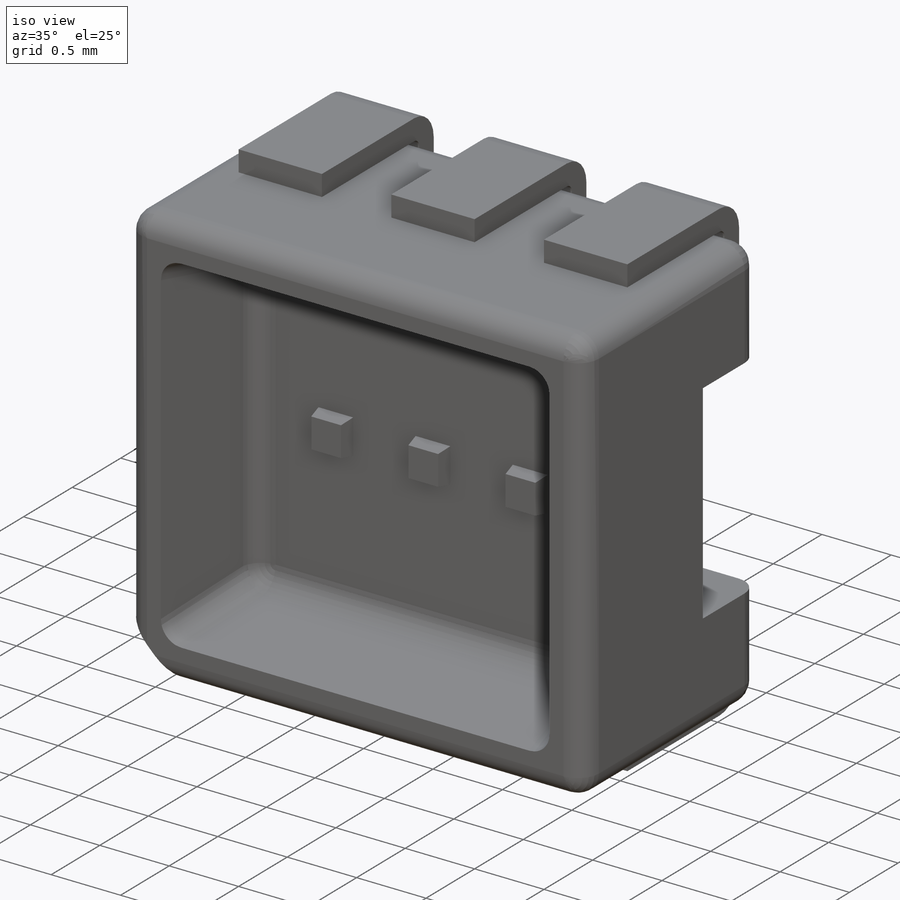
[diagram: iso view]
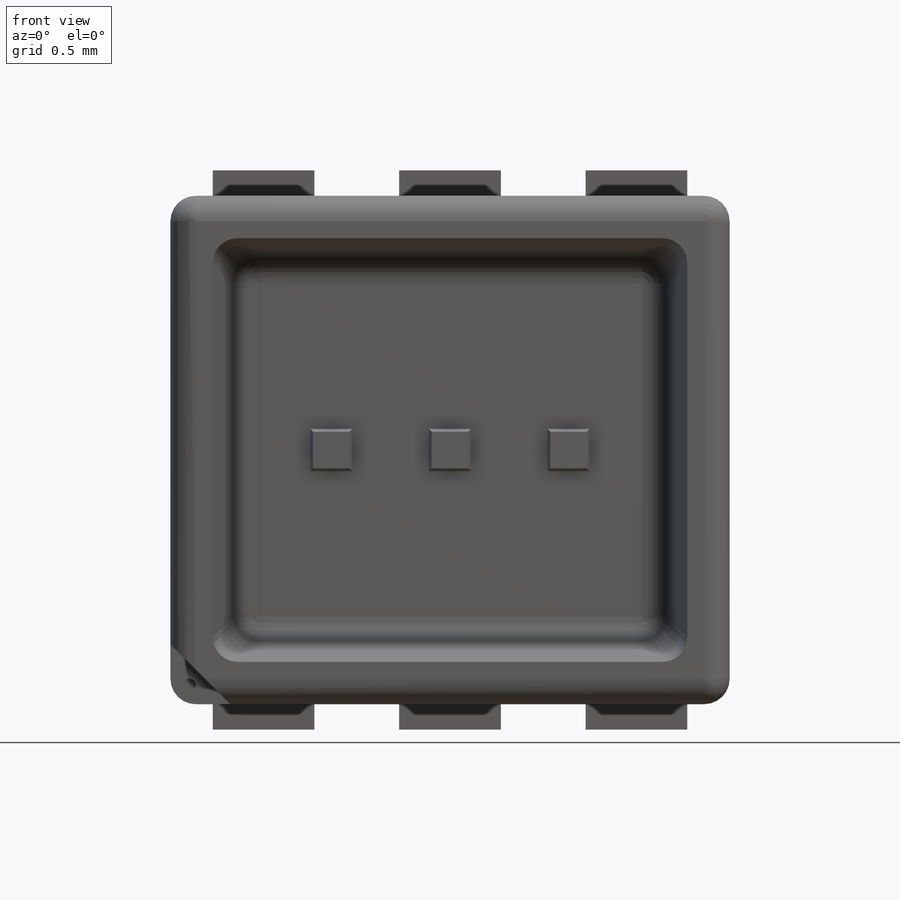
[diagram: front view]
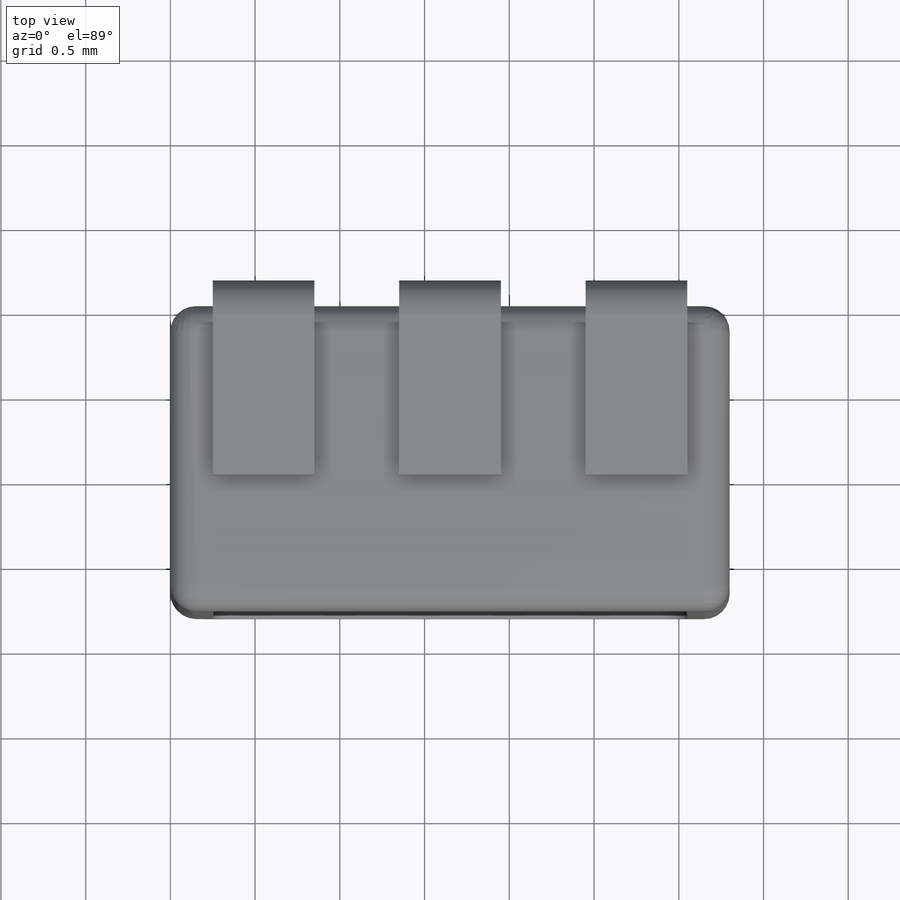
[diagram: top view]
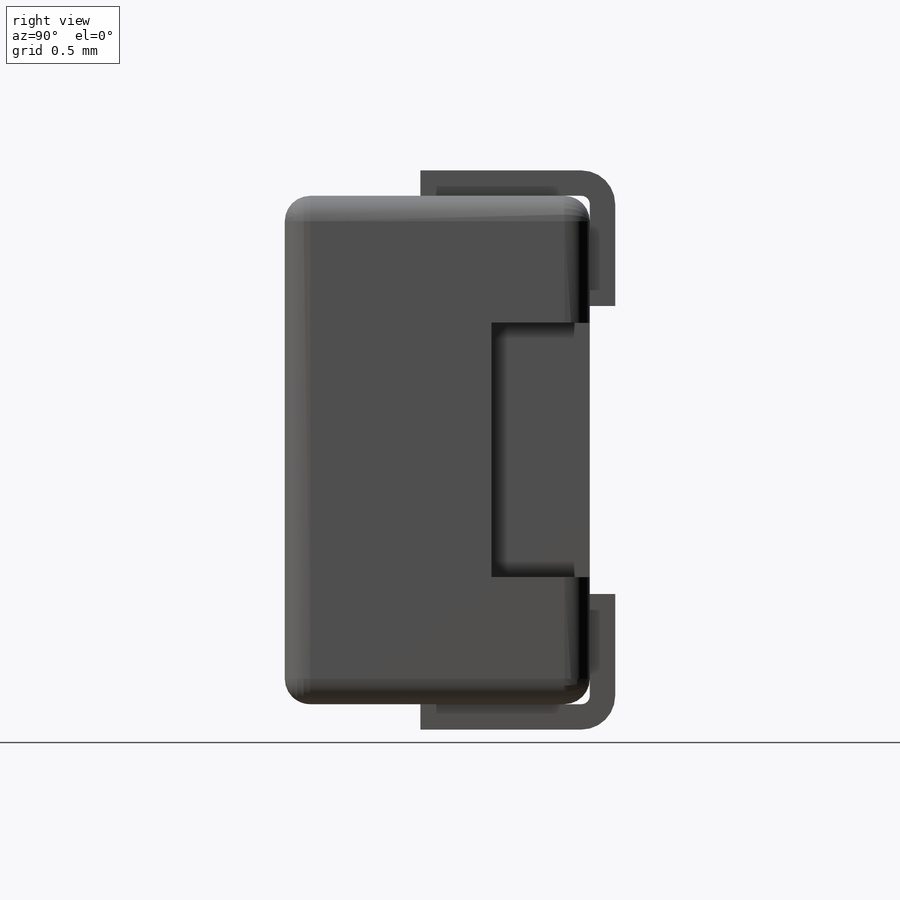
[diagram: right view]
SOLIDWORKS PART (.sldprt)
format: sldprt  version: not decoded by parser v0  size: 445,440 bytes
history: native  units: mm
features: sketch x7, cut_extrude x4, plane x3, extrude x2, pattern_linear x2, mirror x2, material x1, fillet x1 (+13 scaffold rows collapsed)
feature tree (35):
  scaffold x13  (default folders/planes/origin — collapsed)
  material  "Material <not specified>"
  sketch  "Sketch1"  dims[D1=3.0mm D2=3.3mm]
  extrude  "Boss-Extrude1"  Depth=1.8mm
  sketch  "Sketch4"  dims[c1.D1=~0.560265mm c2.D1=45.0deg c2.D2=0.5mm]
  cut_extrude  "Cut-Extrude2"  Depth=0.4mm
  sketch  "Sketch2"  dims[D1=2.8mm D2=2.5mm]
  cut_extrude  "Cut-Extrude1"  Depth=0.8mm
  fillet  "Fillet1"  Radius=0.15mm
  plane  "Plane1"  Offset=0.55mm
  sketch  "Sketch3"  dims[c1.D1=1.0mm c1.D2=0.65mm c2.D1=1.0mm c2.D3=0.8mm c3.D1=0.6mm c3.D5=0.15mm c3.D6=10.0mm c3.D7=0.05mm]
  pattern_linear  "LPattern1"  Count1=3 Count2=1 Spacing1=1.1mm Spacing2=10mm
  plane  "Plane2"  Offset=1.5mm
  mirror  "Mirror1"
  sketch  "Sketch5"  dims[D3=0.08mm D1=0.11mm D2=0.11mm]
  cut_extrude  "Cut-Extrude3"  Depth=0.1mm
  sketch  "Sketch6"  dims[D1=0.25mm D2=0.25mm D3=0.7mm]
  extrude  "Boss-Extrude2"  Depth=0.1mm
  pattern_linear  "LPattern2"  Count1=3 Count2=1 Spacing1=0.7mm Spacing2=10mm
  sketch  "Sketch7"  dims[D1=1.22mm D2=0.55mm]
  plane  "Plane3"  Offset=1.65mm
  cut_extrude  "Cut-Extrude4"  Depth=1.5mm
  mirror  "Mirror2"
decode coverage: 16 of 18 modeling features carry decoded parameters
note: ~ marks probable driven/reference dimensions
note: suppression state not decoded; provenance and decode notes live in map.json
